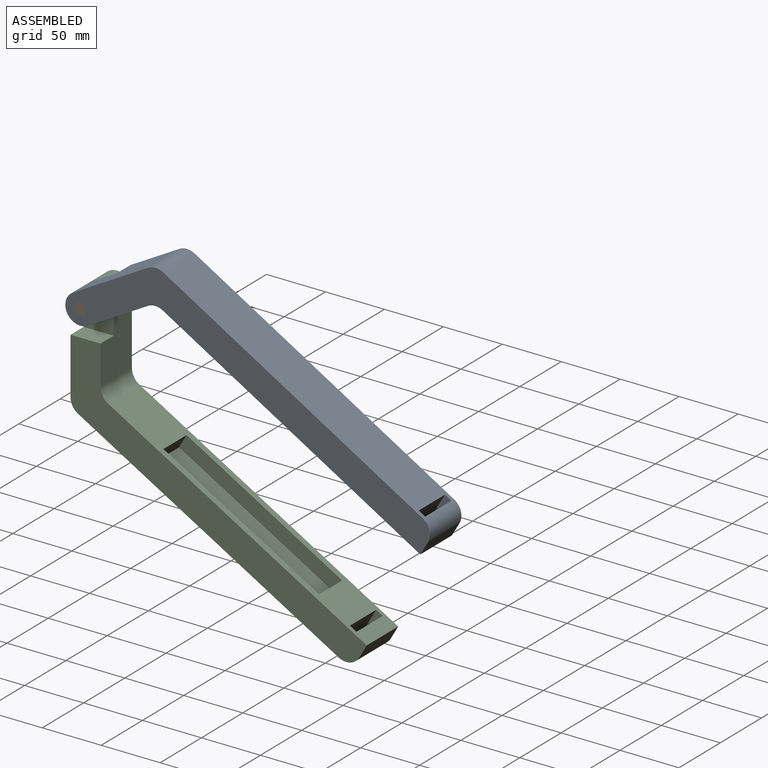
[diagram: assembled view]
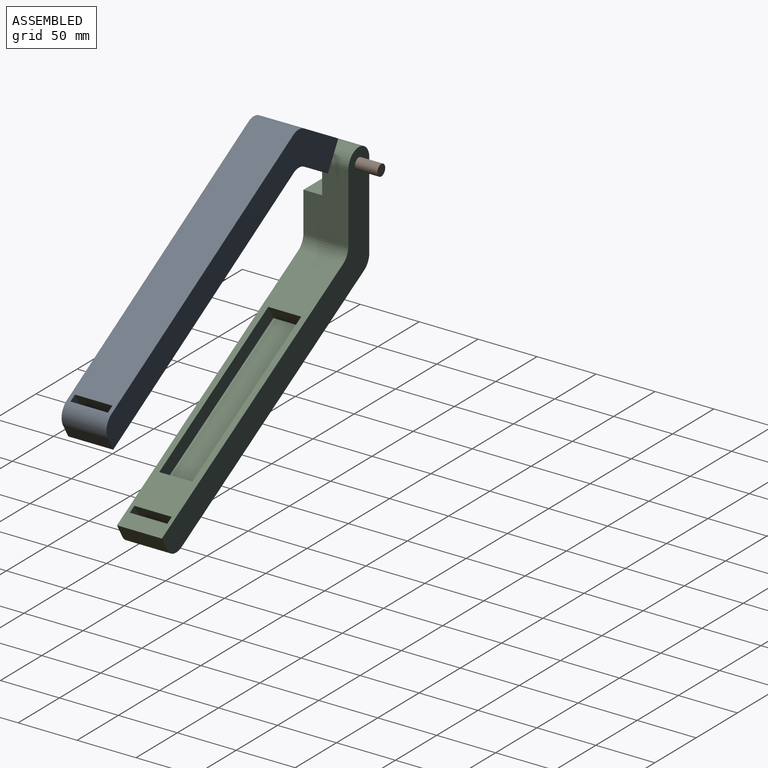
[diagram: assembled view, second angle]
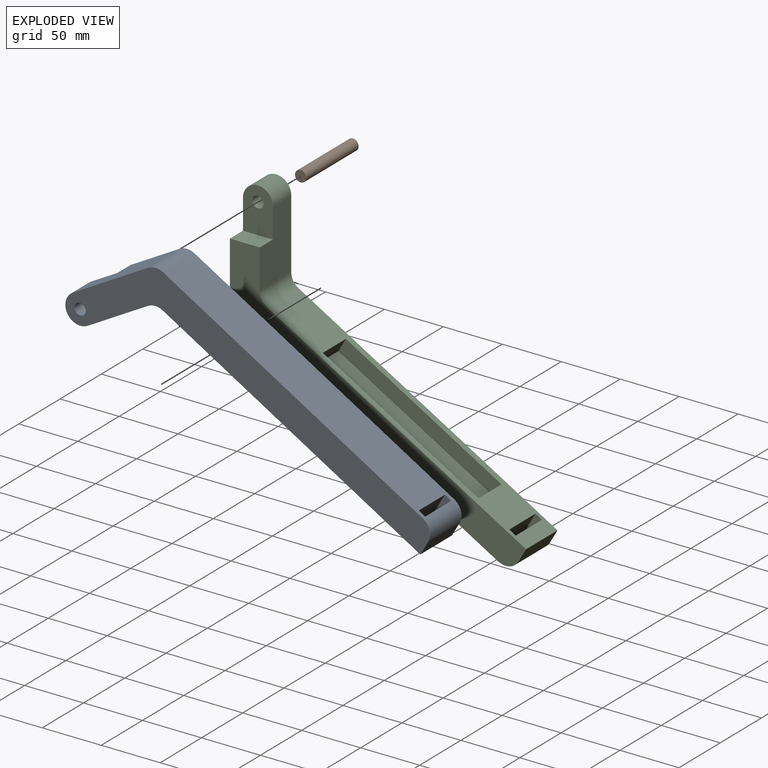
[diagram: exploded view]
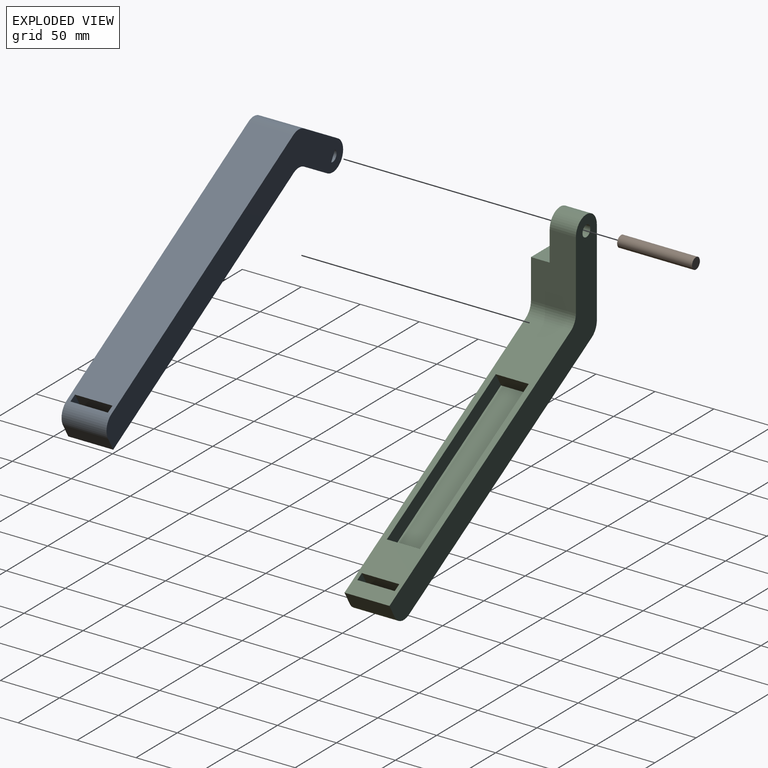
[diagram: exploded view, second angle]
ASSEMBLY  parts=3 mates=2
PART A: 23 faces, bbox 251.3x38.1x226.4 mm
  f0: plane 58.66x38.1mm, normal (1,0,0), area 1831.7mm2, adj f2,f6,f10,f11,f12,f13
  f1: plane 73.32x38.1mm, normal (-1,0,0), area 2390.4mm2, adj f2,f7,f10,f11,f12,f13
  f2: cylinder r=12.7mm len=25.4mm, axis (0,1,0), area 886.7mm2, adj f0,f1,f11,f13
  f3: cylinder r=4.76mm len=22.23mm, axis (0,1,0), area 665.1mm2, adj f11,f13
  f4: plane 38.1x11mm, normal (0.87,0,-0.5), area 483.9mm2, adj f5,f9,f10,f11
  f5: plane 219.51x126.74mm, normal (0.5,0,0.87), area 5189.9mm2, adj f4,f6,f10,f11,f14,f15,f16,f17
  f6: cylinder r=12.7mm len=38.1mm, axis (0,1,0), area 506.7mm2, adj f0,f5,f10,f11
  f7: cylinder r=12.7mm len=38.1mm, axis (0,1,0), area 506.7mm2, adj f1,f8,f10,f11
  f8: plane 221.22x127.72mm, normal (-0.5,0,-0.87), area 9530.6mm2, adj f7,f9,f10,f11,f19,f20,f22
  f9: cylinder r=12.7mm len=38.1mm, axis (0,1,0), area 760.1mm2, adj f4,f8,f10,f11,f21
  f10: plane 251.26x188.34mm, normal (0,-1,0), area 7993.4mm2, adj f0,f1,f4,f5,f6,f7,f8,f9
  f11: plane 251.26x226.44mm, normal (0,1,0), area 8820.6mm2, adj f0,f1,f2,f3,f4,f5,f6,f7
  f12: plane 25.4x15.88mm, normal (0,0,1), area 403.2mm2, adj f0,f1,f10,f13
  f13: plane 38.1x25.4mm, normal (0,-1,0), area 827.3mm2, adj f0,f1,f2,f3,f12
  f14: plane 27.99x11mm, normal (0.87,0,-0.5), area 355.5mm2, adj f5,f15,f17,f18
  f15: plane 138.33x87.2mm, normal (0,1,0), area 1935.5mm2, adj f5,f14,f16,f18
  f16: plane 27.99x11mm, normal (-0.87,0,0.5), area 355.5mm2, adj f5,f15,f17,f18
  f17: plane 138.33x87.2mm, normal (0,-1,0), area 1935.5mm2, adj f5,f14,f16,f18
  f18: plane 131.98x76.2mm, normal (0.5,0,0.87), area 4265.8mm2, adj f14,f15,f16,f17
  f19: plane 31.75x22mm, normal (0.87,0,-0.5), area 806.4mm2, adj f5,f8,f20,f22
  f20: plane 25.17x18.2mm, normal (0,1,0), area 161.3mm2, adj f5,f8,f19,f21
  f21: plane 31.75x22mm, normal (-0.87,0,0.5), area 806.4mm2, adj f5,f9,f20,f22
  f22: plane 25.17x18.2mm, normal (0,-1,0), area 161.3mm2, adj f5,f8,f19,f21
PART B: 3 faces, bbox 9.5x63.5x9.5 mm
  f0: cylinder r=4.76mm len=63.5mm, axis (0,1,0), area 1900.2mm2, adj f1,f2
  f1: plane 9.53x9.53mm, normal (0,-1,0), area 71.3mm2, adj f0
  f2: plane 9.53x9.53mm, normal (0,1,0), area 71.3mm2, adj f0
PART C: same geometry as A
PLACE A rot(axis=(0.86,0,-0.5),180deg) t=(-52.64,-57.39,5.08)mm
PLACE B rot(axis=(0,-1,0),29.5deg) t=(-53.76,6.11,7.07)mm
PLACE C t=(-52.64,-12.94,5.08)mm fixed
MATE revolute C.f2 <-> A.f2  axis (0,1,0) through (-52.64,-35.16,5.08)mm
MATE revolute A.f2 <-> B.f0  axis (0,-1,0) through (-52.64,-57.39,5.08)mm
